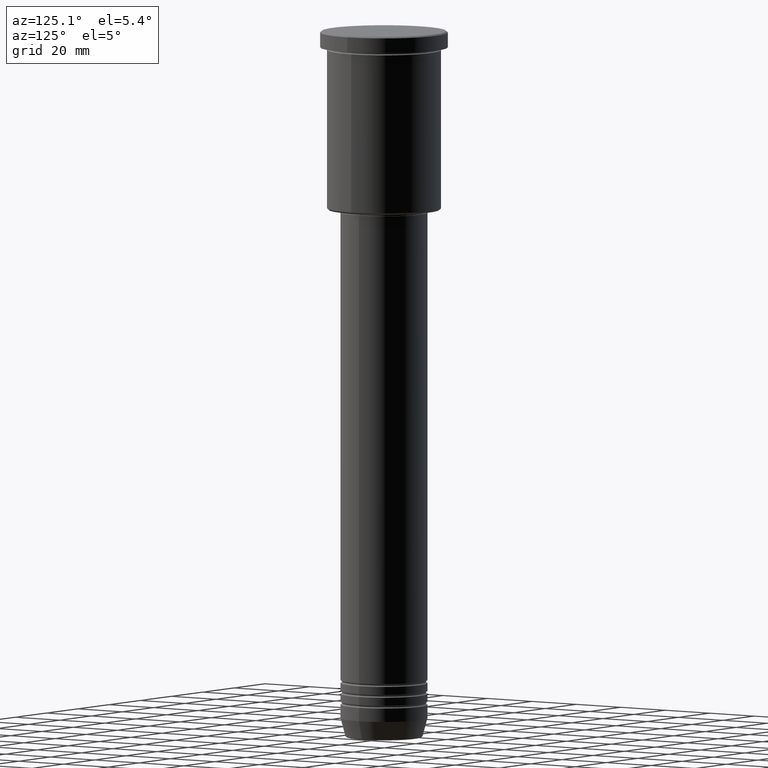
[diagram: clean part render]
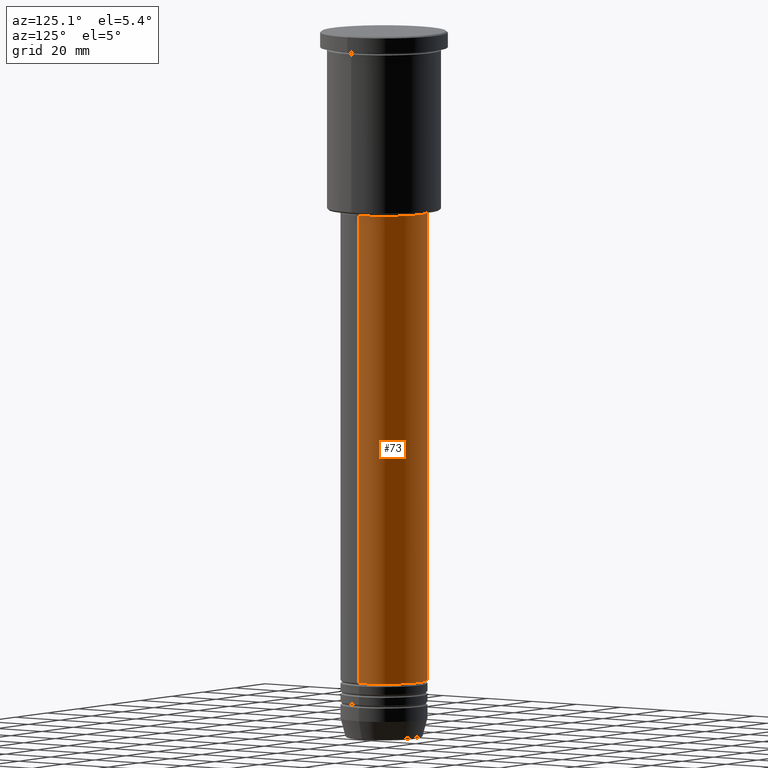
[diagram: same view with one face highlighted and labeled with its STEP entity id]
A machine part, auxiliary view. The second image highlights one B-rep face of the part: STEP entity #73.
In plain terms, the highlighted cylindrical surface (partial cylindrical patch) has radius 16 mm, axis along (-0, -0, 1).
Its self-contained STEP definition (entity closure, byte-faithful):
#73 = ADVANCED_FACE ( 'NONE', ( #1137 ), #774, .T. ) ;
#79 = CARTESIAN_POINT ( 'NONE',  ( 16.00000000000000355, 0.000000000000000000, -67.00000000000002842 ) ) ;
#80 = DIRECTION ( 'NONE',  ( -0.000000000000000000, -0.000000000000000000, 1.000000000000000000 ) ) ;
#102 = EDGE_CURVE ( 'NONE', #942, #760, #150, .T. ) ;
#108 = DIRECTION ( 'NONE',  ( 1.000000000000000000, 0.000000000000000000, 0.000000000000000000 ) ) ;
#135 = AXIS2_PLACEMENT_3D ( 'NONE', #174, #80, #451 ) ;
#136 = VERTEX_POINT ( 'NONE', #79 ) ;
#150 = LINE ( 'NONE', #738, #834 ) ;
#174 = CARTESIAN_POINT ( 'NONE',  ( 0.000000000000000000, 0.000000000000000000, -67.00000000000002842 ) ) ;
#284 = DIRECTION ( 'NONE',  ( -0.000000000000000000, -0.000000000000000000, 1.000000000000000000 ) ) ;
#294 = VECTOR ( 'NONE', #1104, 1000.000000000000000 ) ;
#320 = EDGE_CURVE ( 'NONE', #883, #942, #532, .T. ) ;
#321 = LINE ( 'NONE', #878, #294 ) ;
#335 = ORIENTED_EDGE ( 'NONE', *, *, #461, .F. ) ;
#394 = ORIENTED_EDGE ( 'NONE', *, *, #102, .T. ) ;
#445 = CARTESIAN_POINT ( 'NONE',  ( -16.00000000000000355, 1.959434878635765526E-15, -67.00000000000002842 ) ) ;
#448 = ORIENTED_EDGE ( 'NONE', *, *, #320, .T. ) ;
#451 = DIRECTION ( 'NONE',  ( 1.000000000000000000, 0.000000000000000000, 0.000000000000000000 ) ) ;
#461 = EDGE_CURVE ( 'NONE', #883, #136, #321, .T. ) ;
#506 = CIRCLE ( 'NONE', #135, 16.00000000000000355 ) ;
#514 = DIRECTION ( 'NONE',  ( -0.000000000000000000, -0.000000000000000000, 1.000000000000000000 ) ) ;
#532 = CIRCLE ( 'NONE', #820, 16.00000000000000000 ) ;
#597 = DIRECTION ( 'NONE',  ( -0.000000000000000000, -0.000000000000000000, 1.000000000000000000 ) ) ;
#613 = EDGE_CURVE ( 'NONE', #136, #760, #506, .T. ) ;
#651 = CARTESIAN_POINT ( 'NONE',  ( 16.00000000000000000, 0.000000000000000000, -239.9999999999999147 ) ) ;
#683 = AXIS2_PLACEMENT_3D ( 'NONE', #944, #597, #108 ) ;
#686 = EDGE_LOOP ( 'NONE', ( #448, #394, #851, #335 ) ) ;
#732 = CARTESIAN_POINT ( 'NONE',  ( -16.00000000000000000, 1.959434878635765131E-15, -239.9999999999999147 ) ) ;
#738 = CARTESIAN_POINT ( 'NONE',  ( -16.00000000000000000, 1.959434878635765131E-15, 0.000000000000000000 ) ) ;
#760 = VERTEX_POINT ( 'NONE', #445 ) ;
#774 = CYLINDRICAL_SURFACE ( 'NONE', #683, 16.00000000000000000 ) ;
#820 = AXIS2_PLACEMENT_3D ( 'NONE', #981, #514, #884 ) ;
#834 = VECTOR ( 'NONE', #284, 1000.000000000000000 ) ;
#851 = ORIENTED_EDGE ( 'NONE', *, *, #613, .F. ) ;
#878 = CARTESIAN_POINT ( 'NONE',  ( 16.00000000000000000, 0.000000000000000000, 0.000000000000000000 ) ) ;
#883 = VERTEX_POINT ( 'NONE', #651 ) ;
#884 = DIRECTION ( 'NONE',  ( 1.000000000000000000, 0.000000000000000000, 0.000000000000000000 ) ) ;
#942 = VERTEX_POINT ( 'NONE', #732 ) ;
#944 = CARTESIAN_POINT ( 'NONE',  ( 0.000000000000000000, 0.000000000000000000, 0.000000000000000000 ) ) ;
#981 = CARTESIAN_POINT ( 'NONE',  ( 0.000000000000000000, 0.000000000000000000, -239.9999999999999147 ) ) ;
#1104 = DIRECTION ( 'NONE',  ( -0.000000000000000000, -0.000000000000000000, 1.000000000000000000 ) ) ;
#1137 = FACE_OUTER_BOUND ( 'NONE', #686, .T. ) ;